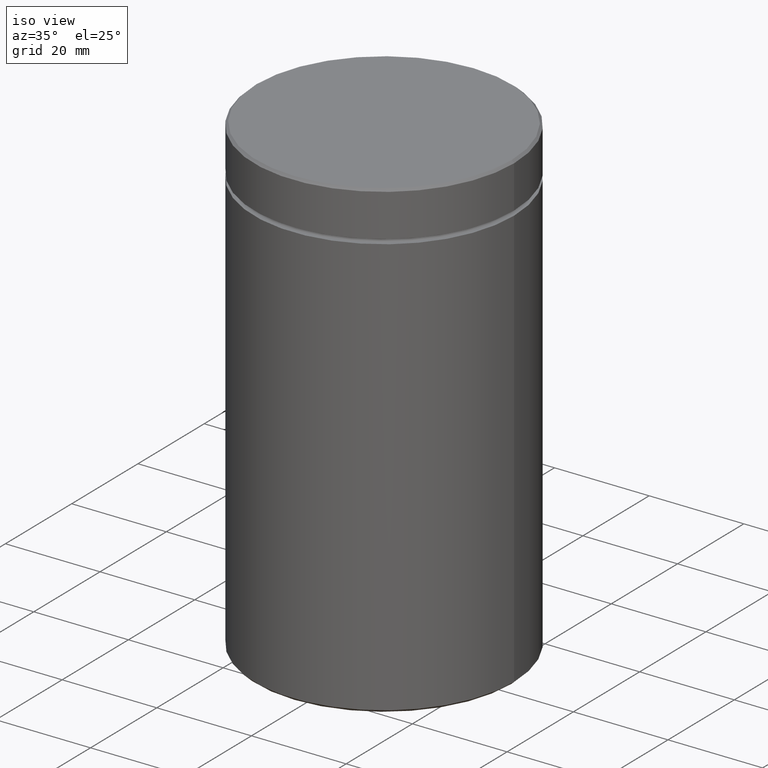
[diagram: clean part render]
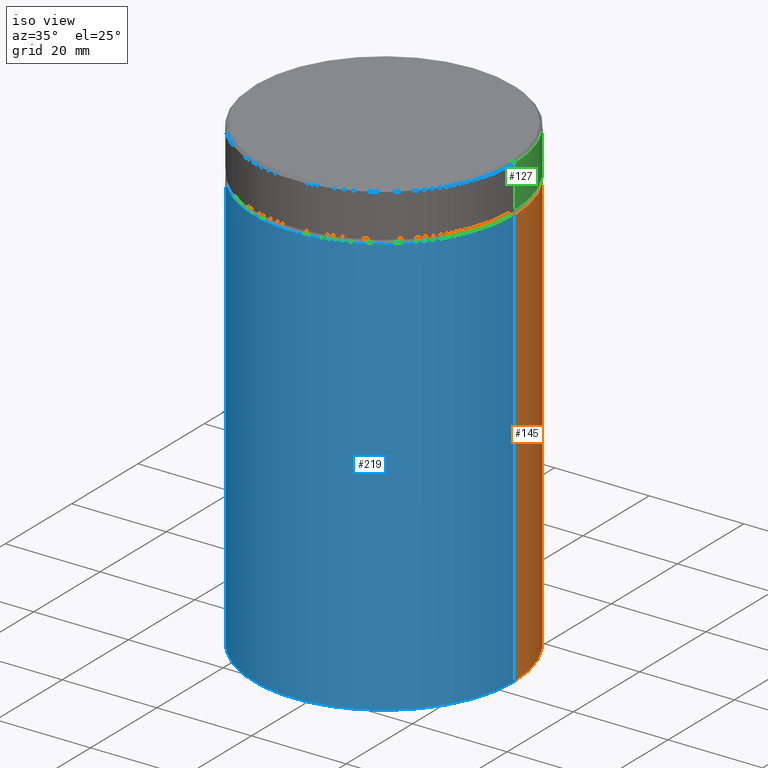
[diagram: same view with three faces highlighted in distinct colors, each labeled with its STEP entity id]
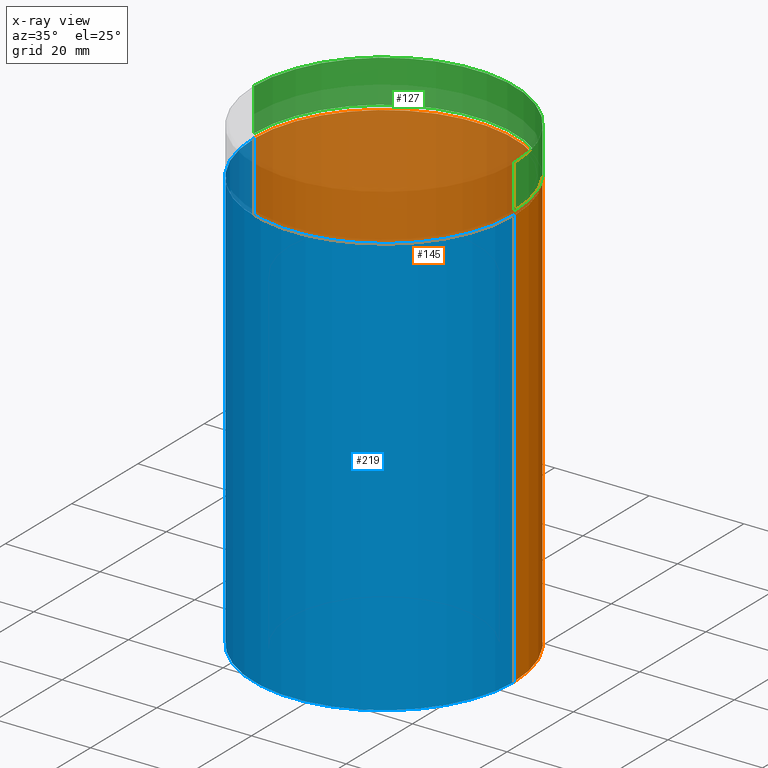
[diagram: x-ray of the same camera — body ghosted, the three highlighted faces saturated]
A machine part, iso view with three faces highlighted in distinct colors.
The next image is the same camera in x-ray (body ghosted, the three faces saturated) — at least one of them is partly hidden behind the body in this view.
Their STEP definitions:

[orange] entity #145 — the highlighted cylindrical surface (partial cylindrical patch) has radius 27.5 mm, axis along (-0, -0, 1).
#8 = DIRECTION ( 'NONE',  ( -0.000000000000000000, -0.000000000000000000, 1.000000000000000000 ) ) ;
#31 = ORIENTED_EDGE ( 'NONE', *, *, #461, .T. ) ;
#43 = ORIENTED_EDGE ( 'NONE', *, *, #428, .F. ) ;
#46 = ORIENTED_EDGE ( 'NONE', *, *, #152, .T. ) ;
#59 = CARTESIAN_POINT ( 'NONE',  ( 27.50000000000000000, 0.000000000000000000, 0.000000000000000000 ) ) ;
#64 = CARTESIAN_POINT ( 'NONE',  ( 0.000000000000000000, 0.000000000000000000, 0.000000000000000000 ) ) ;
#67 = VECTOR ( 'NONE', #8, 1000.000000000000000 ) ;
#68 = FACE_OUTER_BOUND ( 'NONE', #157, .T. ) ;
#86 = DIRECTION ( 'NONE',  ( -0.000000000000000000, -0.000000000000000000, 1.000000000000000000 ) ) ;
#112 = CARTESIAN_POINT ( 'NONE',  ( 0.000000000000000000, 0.000000000000000000, -99.49999999999995737 ) ) ;
#126 = DIRECTION ( 'NONE',  ( -0.000000000000000000, -0.000000000000000000, 1.000000000000000000 ) ) ;
#145 = ADVANCED_FACE ( 'NONE', ( #68 ), #456, .T. ) ;
#152 = EDGE_CURVE ( 'NONE', #341, #262, #549, .T. ) ;
#157 = EDGE_LOOP ( 'NONE', ( #46, #31, #43, #264 ) ) ;
#173 = AXIS2_PLACEMENT_3D ( 'NONE', #112, #551, #290 ) ;
#180 = AXIS2_PLACEMENT_3D ( 'NONE', #526, #86, #536 ) ;
#228 = VERTEX_POINT ( 'NONE', #452 ) ;
#238 = EDGE_CURVE ( 'NONE', #341, #506, #490, .T. ) ;
#250 = CARTESIAN_POINT ( 'NONE',  ( 27.50000000000000000, 0.000000000000000000, -10.50000000000000000 ) ) ;
#262 = VERTEX_POINT ( 'NONE', #446 ) ;
#264 = ORIENTED_EDGE ( 'NONE', *, *, #238, .F. ) ;
#290 = DIRECTION ( 'NONE',  ( -1.000000000000000000, 0.000000000000000000, 0.000000000000000000 ) ) ;
#292 = CARTESIAN_POINT ( 'NONE',  ( 27.50000000000000000, 0.000000000000000000, -99.49999999999995737 ) ) ;
#293 = AXIS2_PLACEMENT_3D ( 'NONE', #64, #420, #513 ) ;
#318 = CIRCLE ( 'NONE', #180, 27.50000000000000000 ) ;
#341 = VERTEX_POINT ( 'NONE', #292 ) ;
#420 = DIRECTION ( 'NONE',  ( -0.000000000000000000, -0.000000000000000000, 1.000000000000000000 ) ) ;
#428 = EDGE_CURVE ( 'NONE', #506, #228, #318, .T. ) ;
#437 = LINE ( 'NONE', #566, #458 ) ;
#446 = CARTESIAN_POINT ( 'NONE',  ( -27.50000000000000000, 3.367778697655221307E-15, -99.49999999999995737 ) ) ;
#452 = CARTESIAN_POINT ( 'NONE',  ( -27.50000000000000000, 3.367778697655221307E-15, -10.50000000000000000 ) ) ;
#456 = CYLINDRICAL_SURFACE ( 'NONE', #293, 27.50000000000000000 ) ;
#458 = VECTOR ( 'NONE', #126, 1000.000000000000000 ) ;
#461 = EDGE_CURVE ( 'NONE', #262, #228, #437, .T. ) ;
#490 = LINE ( 'NONE', #59, #67 ) ;
#506 = VERTEX_POINT ( 'NONE', #250 ) ;
#513 = DIRECTION ( 'NONE',  ( 1.000000000000000000, 0.000000000000000000, 0.000000000000000000 ) ) ;
#526 = CARTESIAN_POINT ( 'NONE',  ( 0.000000000000000000, 0.000000000000000000, -10.50000000000000000 ) ) ;
#536 = DIRECTION ( 'NONE',  ( 1.000000000000000000, 0.000000000000000000, 0.000000000000000000 ) ) ;
#549 = CIRCLE ( 'NONE', #173, 27.50000000000000000 ) ;
#551 = DIRECTION ( 'NONE',  ( -0.000000000000000000, -0.000000000000000000, 1.000000000000000000 ) ) ;
#566 = CARTESIAN_POINT ( 'NONE',  ( -27.50000000000000000, 3.367778697655221307E-15, 0.000000000000000000 ) ) ;

[blue] entity #219 — the highlighted cylindrical surface (partial cylindrical patch) has radius 27.5 mm, axis along (-0, -0, 1).
#8 = DIRECTION ( 'NONE',  ( -0.000000000000000000, -0.000000000000000000, 1.000000000000000000 ) ) ;
#57 = CARTESIAN_POINT ( 'NONE',  ( 0.000000000000000000, 0.000000000000000000, -99.49999999999995737 ) ) ;
#59 = CARTESIAN_POINT ( 'NONE',  ( 27.50000000000000000, 0.000000000000000000, 0.000000000000000000 ) ) ;
#62 = CARTESIAN_POINT ( 'NONE',  ( 0.000000000000000000, 0.000000000000000000, 0.000000000000000000 ) ) ;
#67 = VECTOR ( 'NONE', #8, 1000.000000000000000 ) ;
#91 = DIRECTION ( 'NONE',  ( 1.000000000000000000, 0.000000000000000000, 0.000000000000000000 ) ) ;
#94 = DIRECTION ( 'NONE',  ( -0.000000000000000000, -0.000000000000000000, 1.000000000000000000 ) ) ;
#101 = CYLINDRICAL_SURFACE ( 'NONE', #309, 27.50000000000000000 ) ;
#126 = DIRECTION ( 'NONE',  ( -0.000000000000000000, -0.000000000000000000, 1.000000000000000000 ) ) ;
#131 = CARTESIAN_POINT ( 'NONE',  ( 0.000000000000000000, 0.000000000000000000, -10.50000000000000000 ) ) ;
#139 = DIRECTION ( 'NONE',  ( -0.000000000000000000, -0.000000000000000000, 1.000000000000000000 ) ) ;
#154 = CIRCLE ( 'NONE', #211, 27.50000000000000000 ) ;
#159 = EDGE_LOOP ( 'NONE', ( #387, #556, #435, #268 ) ) ;
#187 = DIRECTION ( 'NONE',  ( 1.000000000000000000, 0.000000000000000000, 0.000000000000000000 ) ) ;
#191 = FACE_OUTER_BOUND ( 'NONE', #159, .T. ) ;
#211 = AXIS2_PLACEMENT_3D ( 'NONE', #57, #94, #407 ) ;
#219 = ADVANCED_FACE ( 'NONE', ( #191 ), #101, .T. ) ;
#228 = VERTEX_POINT ( 'NONE', #452 ) ;
#238 = EDGE_CURVE ( 'NONE', #341, #506, #490, .T. ) ;
#242 = AXIS2_PLACEMENT_3D ( 'NONE', #131, #310, #91 ) ;
#244 = EDGE_CURVE ( 'NONE', #262, #341, #154, .T. ) ;
#250 = CARTESIAN_POINT ( 'NONE',  ( 27.50000000000000000, 0.000000000000000000, -10.50000000000000000 ) ) ;
#262 = VERTEX_POINT ( 'NONE', #446 ) ;
#268 = ORIENTED_EDGE ( 'NONE', *, *, #314, .F. ) ;
#292 = CARTESIAN_POINT ( 'NONE',  ( 27.50000000000000000, 0.000000000000000000, -99.49999999999995737 ) ) ;
#309 = AXIS2_PLACEMENT_3D ( 'NONE', #62, #139, #187 ) ;
#310 = DIRECTION ( 'NONE',  ( -0.000000000000000000, -0.000000000000000000, 1.000000000000000000 ) ) ;
#314 = EDGE_CURVE ( 'NONE', #228, #506, #375, .T. ) ;
#341 = VERTEX_POINT ( 'NONE', #292 ) ;
#375 = CIRCLE ( 'NONE', #242, 27.50000000000000000 ) ;
#387 = ORIENTED_EDGE ( 'NONE', *, *, #461, .F. ) ;
#407 = DIRECTION ( 'NONE',  ( -1.000000000000000000, 0.000000000000000000, 0.000000000000000000 ) ) ;
#435 = ORIENTED_EDGE ( 'NONE', *, *, #238, .T. ) ;
#437 = LINE ( 'NONE', #566, #458 ) ;
#446 = CARTESIAN_POINT ( 'NONE',  ( -27.50000000000000000, 3.367778697655221307E-15, -99.49999999999995737 ) ) ;
#452 = CARTESIAN_POINT ( 'NONE',  ( -27.50000000000000000, 3.367778697655221307E-15, -10.50000000000000000 ) ) ;
#458 = VECTOR ( 'NONE', #126, 1000.000000000000000 ) ;
#461 = EDGE_CURVE ( 'NONE', #262, #228, #437, .T. ) ;
#490 = LINE ( 'NONE', #59, #67 ) ;
#506 = VERTEX_POINT ( 'NONE', #250 ) ;
#556 = ORIENTED_EDGE ( 'NONE', *, *, #244, .T. ) ;
#566 = CARTESIAN_POINT ( 'NONE',  ( -27.50000000000000000, 3.367778697655221307E-15, 0.000000000000000000 ) ) ;

[green] entity #127 — the highlighted cylindrical surface (partial cylindrical patch) has radius 27.5 mm, axis along (-0, -0, 1).
#3 = VECTOR ( 'NONE', #146, 1000.000000000000000 ) ;
#30 = EDGE_CURVE ( 'NONE', #175, #280, #129, .T. ) ;
#40 = CARTESIAN_POINT ( 'NONE',  ( 0.000000000000000000, 0.000000000000000000, -0.5000000000000143219 ) ) ;
#76 = CARTESIAN_POINT ( 'NONE',  ( 0.000000000000000000, 0.000000000000000000, -9.500000000000000000 ) ) ;
#105 = DIRECTION ( 'NONE',  ( -0.000000000000000000, -0.000000000000000000, 1.000000000000000000 ) ) ;
#109 = CARTESIAN_POINT ( 'NONE',  ( 27.50000000000000000, 0.000000000000000000, 0.000000000000000000 ) ) ;
#127 = ADVANCED_FACE ( 'NONE', ( #464 ), #324, .T. ) ;
#129 = LINE ( 'NONE', #487, #304 ) ;
#137 = DIRECTION ( 'NONE',  ( -0.000000000000000000, -0.000000000000000000, 1.000000000000000000 ) ) ;
#144 = ORIENTED_EDGE ( 'NONE', *, *, #489, .T. ) ;
#146 = DIRECTION ( 'NONE',  ( -0.000000000000000000, -0.000000000000000000, 1.000000000000000000 ) ) ;
#156 = CARTESIAN_POINT ( 'NONE',  ( 0.000000000000000000, 0.000000000000000000, 0.000000000000000000 ) ) ;
#161 = VERTEX_POINT ( 'NONE', #555 ) ;
#162 = EDGE_CURVE ( 'NONE', #201, #161, #193, .T. ) ;
#163 = AXIS2_PLACEMENT_3D ( 'NONE', #76, #245, #427 ) ;
#175 = VERTEX_POINT ( 'NONE', #351 ) ;
#193 = LINE ( 'NONE', #109, #3 ) ;
#201 = VERTEX_POINT ( 'NONE', #313 ) ;
#212 = DIRECTION ( 'NONE',  ( 1.000000000000000000, 0.000000000000000000, 0.000000000000000000 ) ) ;
#245 = DIRECTION ( 'NONE',  ( -0.000000000000000000, -0.000000000000000000, 1.000000000000000000 ) ) ;
#254 = CIRCLE ( 'NONE', #163, 27.50000000000000000 ) ;
#274 = ORIENTED_EDGE ( 'NONE', *, *, #389, .T. ) ;
#280 = VERTEX_POINT ( 'NONE', #359 ) ;
#299 = CIRCLE ( 'NONE', #562, 27.50000000000000000 ) ;
#304 = VECTOR ( 'NONE', #137, 1000.000000000000000 ) ;
#313 = CARTESIAN_POINT ( 'NONE',  ( 27.50000000000000000, 0.000000000000000000, -9.500000000000000000 ) ) ;
#324 = CYLINDRICAL_SURFACE ( 'NONE', #488, 27.50000000000000000 ) ;
#351 = CARTESIAN_POINT ( 'NONE',  ( -27.50000000000000000, 3.367778697655221307E-15, -9.500000000000000000 ) ) ;
#359 = CARTESIAN_POINT ( 'NONE',  ( -27.50000000000000000, 3.367778697655221307E-15, -0.5000000000000143219 ) ) ;
#389 = EDGE_CURVE ( 'NONE', #280, #161, #299, .T. ) ;
#427 = DIRECTION ( 'NONE',  ( 1.000000000000000000, 0.000000000000000000, 0.000000000000000000 ) ) ;
#433 = EDGE_LOOP ( 'NONE', ( #144, #463, #274, #530 ) ) ;
#445 = DIRECTION ( 'NONE',  ( 0.000000000000000000, 0.000000000000000000, -1.000000000000000000 ) ) ;
#463 = ORIENTED_EDGE ( 'NONE', *, *, #30, .T. ) ;
#464 = FACE_OUTER_BOUND ( 'NONE', #433, .T. ) ;
#466 = DIRECTION ( 'NONE',  ( 1.000000000000000000, 0.000000000000000000, 0.000000000000000000 ) ) ;
#487 = CARTESIAN_POINT ( 'NONE',  ( -27.50000000000000000, 3.367778697655221307E-15, 0.000000000000000000 ) ) ;
#488 = AXIS2_PLACEMENT_3D ( 'NONE', #156, #105, #466 ) ;
#489 = EDGE_CURVE ( 'NONE', #201, #175, #254, .T. ) ;
#530 = ORIENTED_EDGE ( 'NONE', *, *, #162, .F. ) ;
#555 = CARTESIAN_POINT ( 'NONE',  ( 27.50000000000000000, 0.000000000000000000, -0.5000000000000143219 ) ) ;
#562 = AXIS2_PLACEMENT_3D ( 'NONE', #40, #445, #212 ) ;